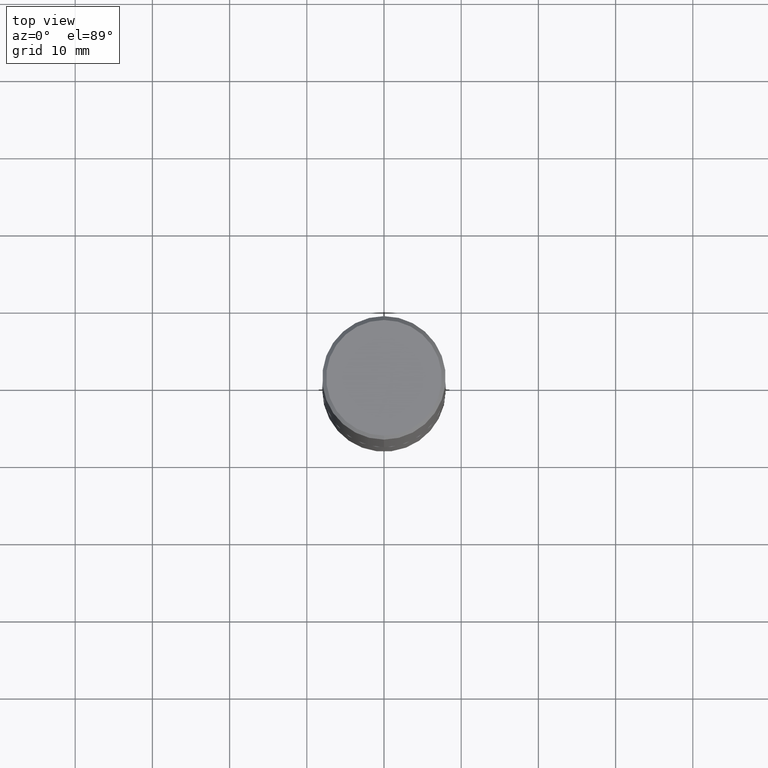
[diagram: clean part render]
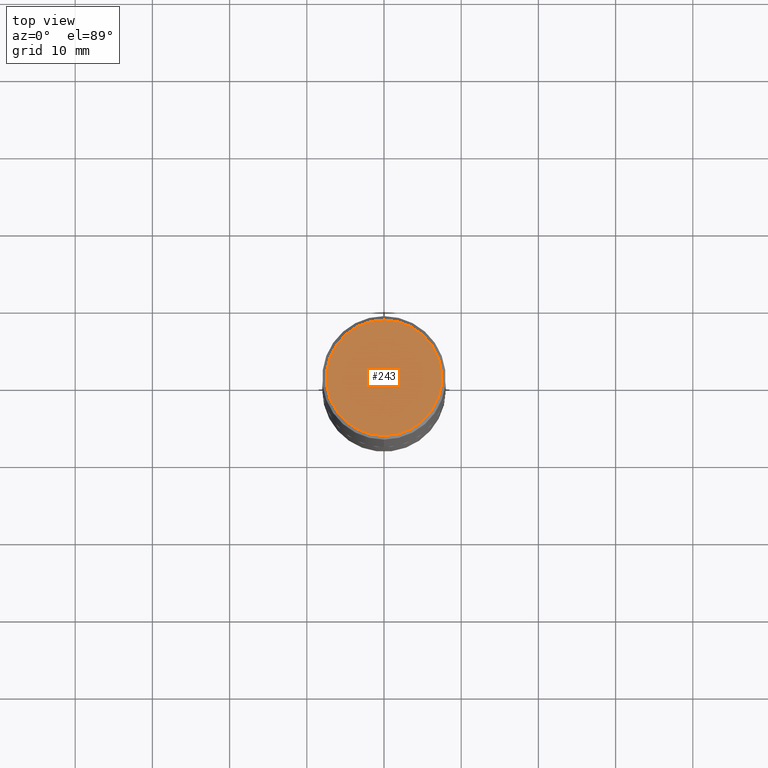
[diagram: same view with one face highlighted and labeled with its STEP entity id]
A machine part, top view. The second image highlights one B-rep face of the part: STEP entity #243.
In plain terms, the highlighted planar face has unit normal (0, -0, -1).
Its self-contained STEP definition (entity closure, byte-faithful):
#22 = DIRECTION ( 'NONE',  ( -2.445731576433639542E-29, 3.491105036891335583E-15, 1.000000000000000000 ) ) ;
#39 = DIRECTION ( 'NONE',  ( -6.982962677686267499E-15, -1.000000000000000000, 3.491105036891335189E-15 ) ) ;
#79 = ORIENTED_EDGE ( 'NONE', *, *, #329, .T. ) ;
#104 = CARTESIAN_POINT ( 'NONE',  ( 2.059624841783564063E-15, 0.2949499999999999345, -9.678634946549864323E-16 ) ) ;
#109 = DIRECTION ( 'NONE',  ( 6.982962677686265922E-15, 1.000000000000000000, -3.491105036891335583E-15 ) ) ;
#120 = AXIS2_PLACEMENT_3D ( 'NONE', #104, #233, #109 ) ;
#126 = FACE_OUTER_BOUND ( 'NONE', #157, .T. ) ;
#129 = AXIS2_PLACEMENT_3D ( 'NONE', #134, #261, #39 ) ;
#134 = CARTESIAN_POINT ( 'NONE',  ( -3.024779852765215528E-45, 4.317654595143425060E-31, 1.236758719522255372E-16 ) ) ;
#157 = EDGE_LOOP ( 'NONE', ( #177, #79 ) ) ;
#170 = EDGE_CURVE ( 'NONE', #309, #242, #322, .T. ) ;
#177 = ORIENTED_EDGE ( 'NONE', *, *, #170, .T. ) ;
#190 = CARTESIAN_POINT ( 'NONE',  ( -3.024779852765215528E-45, 4.317654595143425060E-31, 1.236758719522255372E-16 ) ) ;
#217 = DIRECTION ( 'NONE',  ( -6.982962677686267499E-15, -1.000000000000000000, 3.491105036891335189E-15 ) ) ;
#226 = AXIS2_PLACEMENT_3D ( 'NONE', #190, #22, #217 ) ;
#233 = DIRECTION ( 'NONE',  ( 2.445731576433639262E-29, -3.491105036891335583E-15, -1.000000000000000000 ) ) ;
#242 = VERTEX_POINT ( 'NONE', #366 ) ;
#243 = ADVANCED_FACE ( 'NONE', ( #126 ), #292, .F. ) ;
#255 = CIRCLE ( 'NONE', #129, 0.2949499999999999345 ) ;
#261 = DIRECTION ( 'NONE',  ( -2.445731576433639542E-29, 3.491105036891335583E-15, 1.000000000000000000 ) ) ;
#292 = PLANE ( 'NONE',  #120 ) ;
#309 = VERTEX_POINT ( 'NONE', #327 ) ;
#322 = CIRCLE ( 'NONE', #226, 0.2949499999999999345 ) ;
#327 = CARTESIAN_POINT ( 'NONE',  ( 2.129454468560426967E-15, 0.2949499999999999345, -9.060255586788737993E-16 ) ) ;
#329 = EDGE_CURVE ( 'NONE', #242, #309, #255, .T. ) ;
#366 = CARTESIAN_POINT ( 'NONE',  ( -2.092108864420428031E-15, -0.2949499999999999345, 1.153377302583324726E-15 ) ) ;